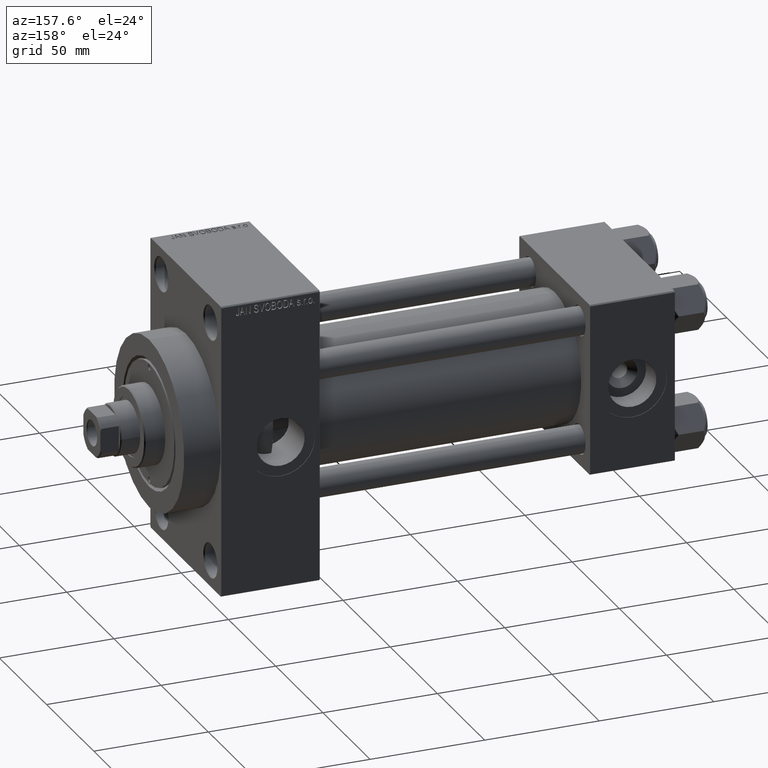
[diagram: clean part render]
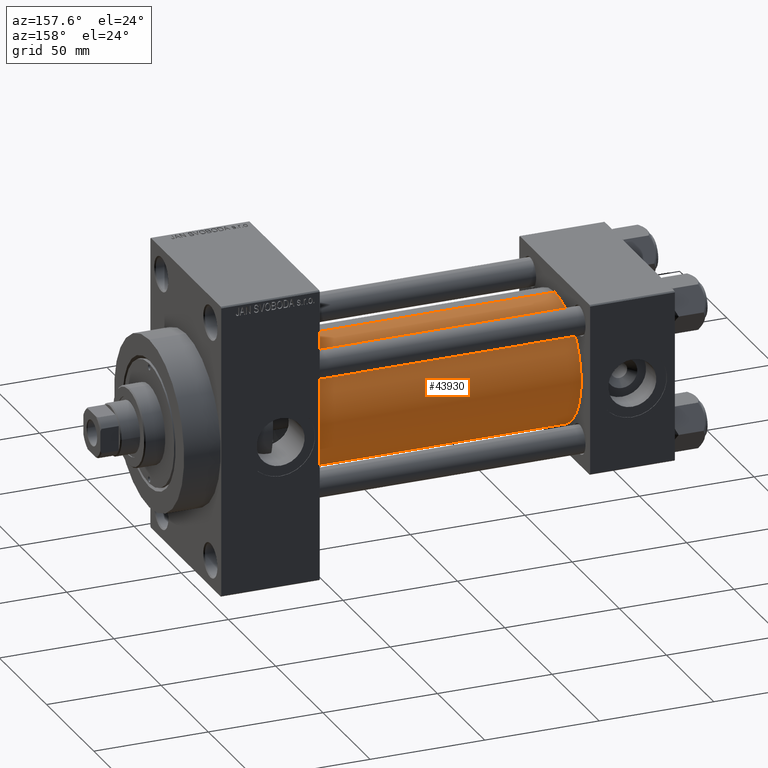
[diagram: same view with one face highlighted and labeled with its STEP entity id]
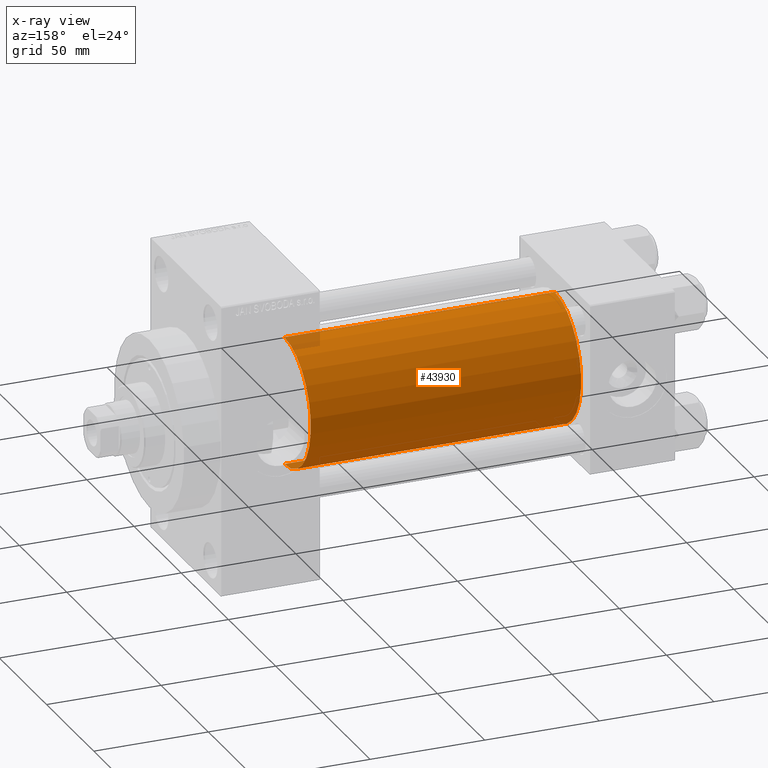
[diagram: x-ray of the same camera — body ghosted, the highlighted face saturated]
A machine part, auxiliary view. The second image highlights one B-rep face of the part: STEP entity #43930.
The next image is the same camera in x-ray: the body ghosted, the highlighted face saturated — about 1% of this face is hidden behind the body in this view.
In plain terms, the highlighted cylindrical surface (partial cylindrical patch) has radius 28 mm, axis along (-1, -0, -0).
Its self-contained STEP definition (entity closure, byte-faithful):
#1240 = CARTESIAN_POINT ( 'NONE',  ( 37.00000000000000711, -2.602085213965210642E-15, 0.000000000000000000 ) ) ;
#1305 = DIRECTION ( 'NONE',  ( 0.000000000000000000, 0.000000000000000000, 1.000000000000000000 ) ) ;
#3226 = LINE ( 'NONE', #43527, #39118 ) ;
#5947 = ORIENTED_EDGE ( 'NONE', *, *, #26836, .T. ) ;
#6583 = DIRECTION ( 'NONE',  ( -1.000000000000000000, -0.000000000000000000, -0.000000000000000000 ) ) ;
#7953 = DIRECTION ( 'NONE',  ( 1.000000000000000000, -0.000000000000000000, 0.000000000000000000 ) ) ;
#8035 = CARTESIAN_POINT ( 'NONE',  ( 155.0000000000000000, -2.602085213965210642E-15, 0.000000000000000000 ) ) ;
#8281 = EDGE_CURVE ( 'NONE', #44553, #26731, #3226, .T. ) ;
#9660 = DIRECTION ( 'NONE',  ( -1.000000000000000000, -0.000000000000000000, -0.000000000000000000 ) ) ;
#12327 = DIRECTION ( 'NONE',  ( -1.000000000000000000, -0.000000000000000000, -0.000000000000000000 ) ) ;
#12625 = AXIS2_PLACEMENT_3D ( 'NONE', #8035, #12327, #1305 ) ;
#13325 = CARTESIAN_POINT ( 'NONE',  ( 155.0000000000000000, 8.269258236473784371E-16, -28.00000000000000000 ) ) ;
#16258 = CIRCLE ( 'NONE', #20855, 28.00000000000000000 ) ;
#17193 = AXIS2_PLACEMENT_3D ( 'NONE', #1240, #7953, #30522 ) ;
#18446 = ORIENTED_EDGE ( 'NONE', *, *, #33874, .F. ) ;
#18972 = VECTOR ( 'NONE', #9660, 1000.000000000000000 ) ;
#19292 = CARTESIAN_POINT ( 'NONE',  ( 37.00000000000000711, 8.269258236473784371E-16, -28.00000000000000000 ) ) ;
#20855 = AXIS2_PLACEMENT_3D ( 'NONE', #36632, #28714, #32554 ) ;
#22923 = FACE_OUTER_BOUND ( 'NONE', #35586, .T. ) ;
#25984 = VERTEX_POINT ( 'NONE', #19292 ) ;
#26731 = VERTEX_POINT ( 'NONE', #30799 ) ;
#26836 = EDGE_CURVE ( 'NONE', #43717, #25984, #42509, .T. ) ;
#28714 = DIRECTION ( 'NONE',  ( 1.000000000000000000, 0.000000000000000000, 0.000000000000000000 ) ) ;
#28875 = CARTESIAN_POINT ( 'NONE',  ( 155.0000000000000000, 8.269258236473784371E-16, -28.00000000000000000 ) ) ;
#30122 = CYLINDRICAL_SURFACE ( 'NONE', #12625, 28.00000000000000000 ) ;
#30522 = DIRECTION ( 'NONE',  ( 0.000000000000000000, 0.000000000000000000, 1.000000000000000000 ) ) ;
#30799 = CARTESIAN_POINT ( 'NONE',  ( 37.00000000000000711, -2.602085213965210642E-15, 28.00000000000000000 ) ) ;
#32554 = DIRECTION ( 'NONE',  ( 0.000000000000000000, 0.000000000000000000, -1.000000000000000000 ) ) ;
#33303 = CIRCLE ( 'NONE', #17193, 28.00000000000000000 ) ;
#33713 = ORIENTED_EDGE ( 'NONE', *, *, #8281, .F. ) ;
#33874 = EDGE_CURVE ( 'NONE', #43717, #44553, #16258, .T. ) ;
#35586 = EDGE_LOOP ( 'NONE', ( #18446, #5947, #45592, #33713 ) ) ;
#36632 = CARTESIAN_POINT ( 'NONE',  ( 155.0000000000000000, -2.602085213965210642E-15, 0.000000000000000000 ) ) ;
#38785 = EDGE_CURVE ( 'NONE', #25984, #26731, #33303, .T. ) ;
#39118 = VECTOR ( 'NONE', #6583, 1000.000000000000000 ) ;
#40206 = CARTESIAN_POINT ( 'NONE',  ( 155.0000000000000000, -2.602085213965210642E-15, 28.00000000000000000 ) ) ;
#42509 = LINE ( 'NONE', #28875, #18972 ) ;
#43527 = CARTESIAN_POINT ( 'NONE',  ( 155.0000000000000000, -2.602085213965210642E-15, 28.00000000000000000 ) ) ;
#43717 = VERTEX_POINT ( 'NONE', #13325 ) ;
#43930 = ADVANCED_FACE ( 'NONE', ( #22923 ), #30122, .T. ) ;
#44553 = VERTEX_POINT ( 'NONE', #40206 ) ;
#45592 = ORIENTED_EDGE ( 'NONE', *, *, #38785, .T. ) ;